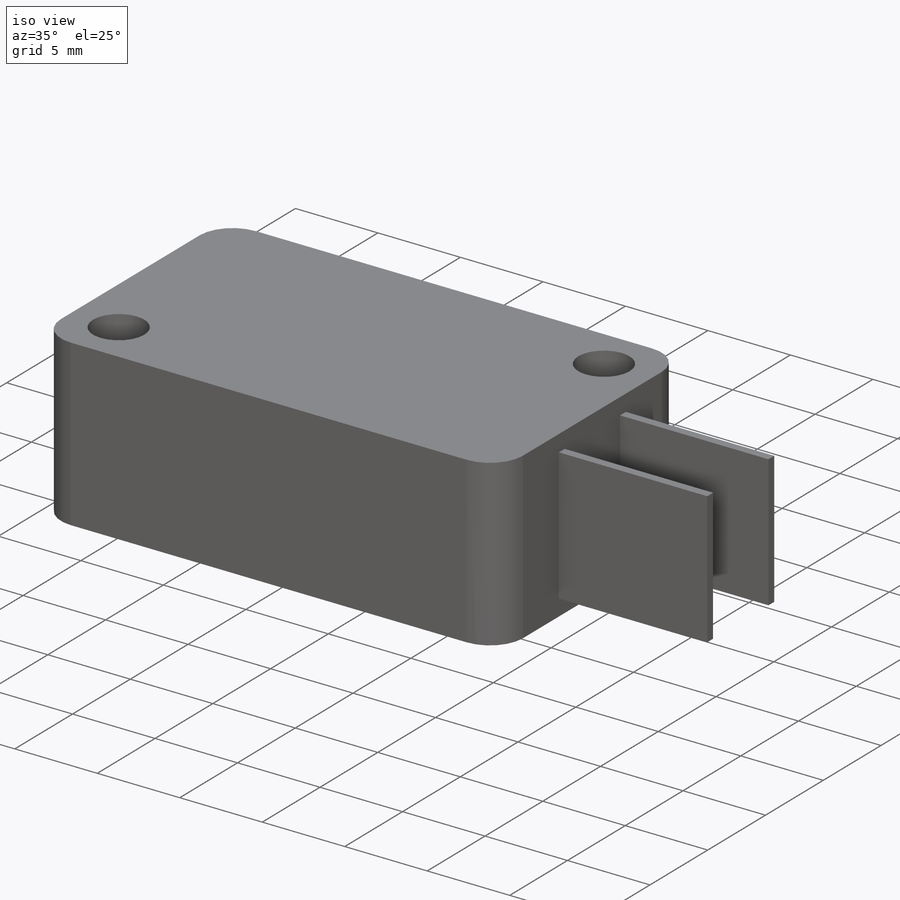
[diagram: iso view]
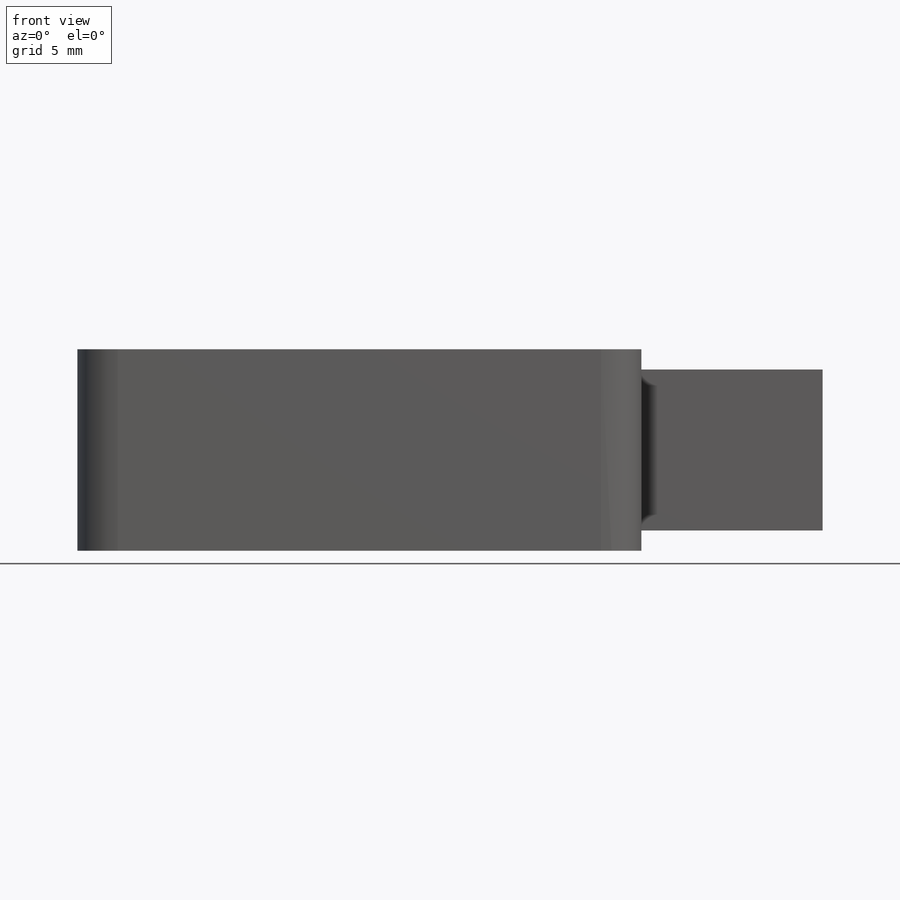
[diagram: front view]
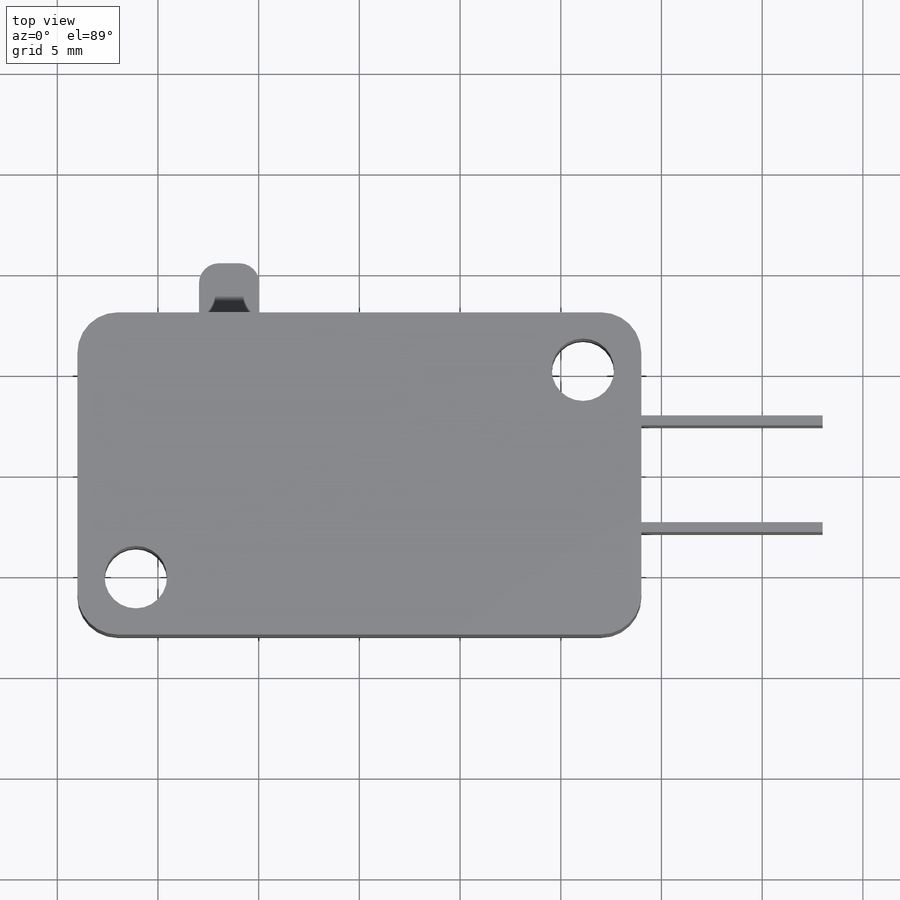
[diagram: top view]
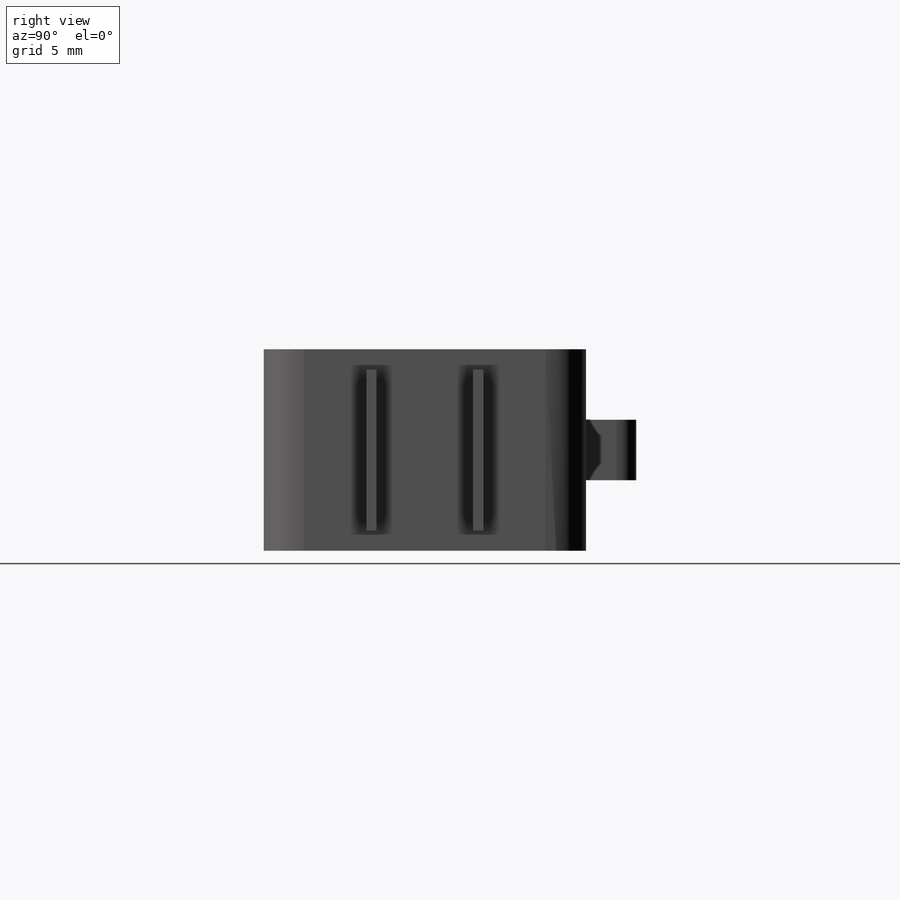
[diagram: right view]
SOLIDWORKS PART (.sldprt)
format: sldprt  version: not decoded by parser v0  size: 210,432 bytes
history: native  units: mm
features: sketch x4, extrude x3, material x1, fillet x1, cut_extrude x1 (+12 scaffold rows collapsed)
feature tree (22):
  scaffold x12  (default folders/planes/origin — collapsed)
  material  "재질 <지정안함>"
  sketch  "스케치1"  dims[c1.D1=28.0mm c1.D2=16.0mm c1.D3=8.0mm c1.D4=~9.189882mm c2.D4=90.0deg c3.D4=14.0mm]
  extrude  "보스-돌출1"  Depth=10mm
  fillet  "필렛1"  Radius=2mm
  sketch  "스케치2"  dims[c1.D5=~0.868108mm c1.D1=1.96mm c1.D2=1.96mm c1.D3=1.96mm c1.D4=1.96mm c2.D1=11.1mm c2.D2=11.1mm c2.D3=5.15mm c2.D4=5.15mm]
  cut_extrude  "컷-돌출1"  Depth=10mm
  sketch  "스케치3"  dims[D1=0.5mm D2=0.5mm D3=2.4mm D4=2.4mm D5=8.0mm D6=8.0mm D7=1.0mm D8=1.0mm]
  extrude  "보스-돌출2"  Depth=9mm
  sketch  "스케치4"  dims[D1=3.0mm D2=3.5mm]
  extrude  "보스-돌출3"  Depth=2.5mm 필렛2=0deg
decode coverage: 9 of 9 modeling features carry decoded parameters
note: ~ marks probable driven/reference dimensions
note: suppression state not decoded; provenance and decode notes live in map.json
